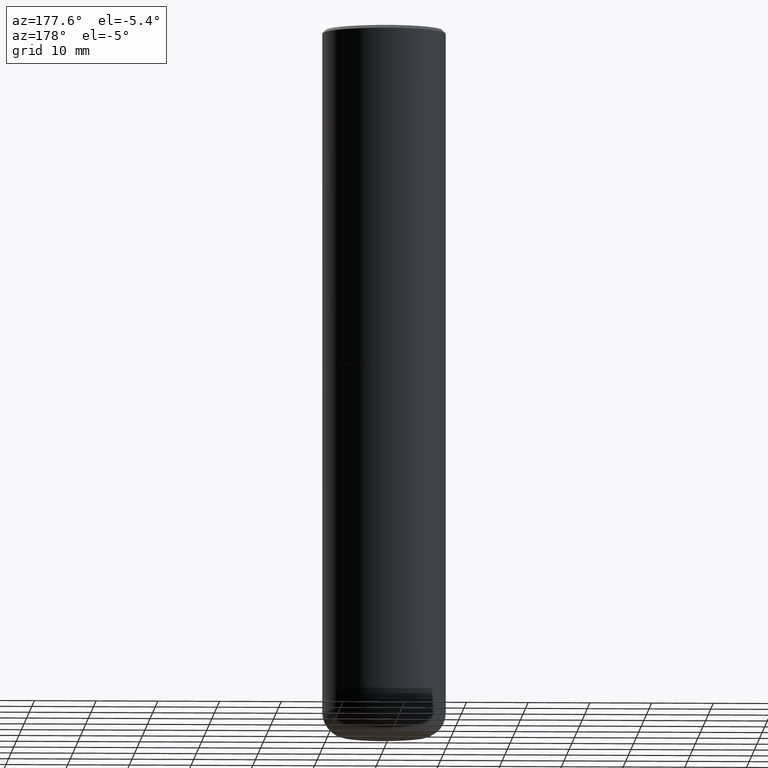
[diagram: clean part render]
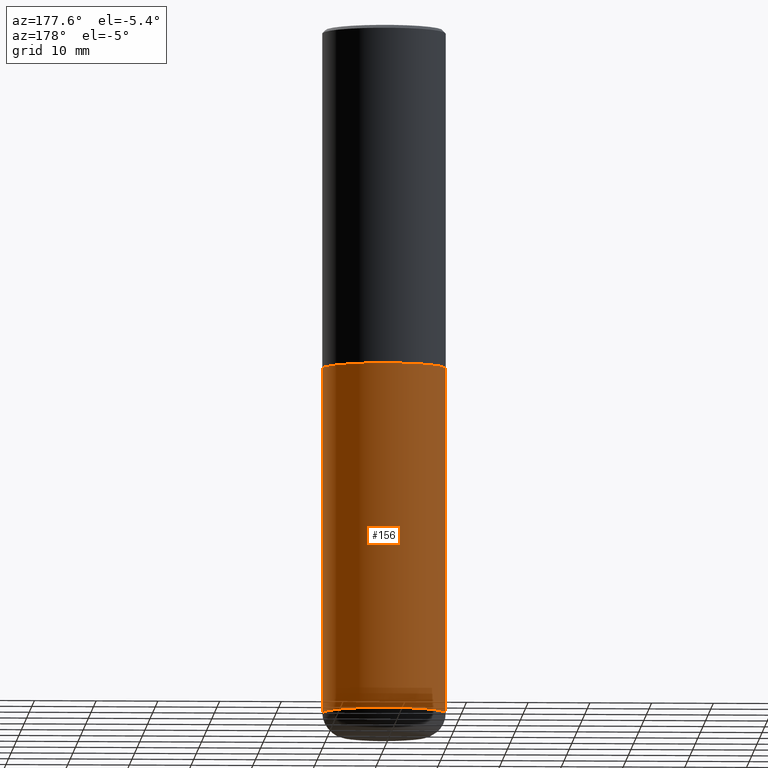
[diagram: same view with one face highlighted and labeled with its STEP entity id]
A machine part, auxiliary view. The second image highlights one B-rep face of the part: STEP entity #156.
In plain terms, the highlighted cylindrical surface (partial cylindrical patch) has radius 10 mm, axis along (-0, 0, 1).
Its self-contained STEP definition (entity closure, byte-faithful):
#12 = EDGE_CURVE ( 'NONE', #370, #275, #291, .T. ) ;
#14 = EDGE_CURVE ( 'NONE', #258, #402, #199, .T. ) ;
#23 = VECTOR ( 'NONE', #320, 39.37007874015748143 ) ;
#26 = LINE ( 'NONE', #150, #304 ) ;
#27 = CARTESIAN_POINT ( 'NONE',  ( 1.068694322990966450E-28, -1.525812259887842897E-14, -4.370099999999998985 ) ) ;
#38 = ORIENTED_EDGE ( 'NONE', *, *, #274, .T. ) ;
#42 = ORIENTED_EDGE ( 'NONE', *, *, #14, .T. ) ;
#46 = CARTESIAN_POINT ( 'NONE',  ( -0.3937000000000001054, -1.246071584819091497E-14, -4.370099999999998985 ) ) ;
#90 = DIRECTION ( 'NONE',  ( -2.445468806185136597E-29, 3.491481338843145583E-15, 1.000000000000000000 ) ) ;
#96 = AXIS2_PLACEMENT_3D ( 'NONE', #383, #218, #276 ) ;
#97 = ORIENTED_EDGE ( 'NONE', *, *, #12, .F. ) ;
#115 = DIRECTION ( 'NONE',  ( -2.445468806185136597E-29, 3.491481338843145583E-15, 1.000000000000000000 ) ) ;
#119 = DIRECTION ( 'NONE',  ( -2.445468806185136877E-29, 3.491481338843145188E-15, 1.000000000000000000 ) ) ;
#123 = DIRECTION ( 'NONE',  ( 1.000000000000000000, -6.982962677686262766E-15, 0.000000000000000000 ) ) ;
#126 = CARTESIAN_POINT ( 'NONE',  ( -0.3937000000000000499, -8.611881394317173410E-15, -2.165399999999999547 ) ) ;
#150 = CARTESIAN_POINT ( 'NONE',  ( 0.3937000000000000499, -2.749192406205083217E-15, 1.919750796630860172E-29 ) ) ;
#153 = CARTESIAN_POINT ( 'NONE',  ( -0.3937000000000000499, 2.797406750687514786E-15, -1.936584745033356735E-29 ) ) ;
#156 = ADVANCED_FACE ( 'NONE', ( #337 ), #266, .T. ) ;
#170 = EDGE_LOOP ( 'NONE', ( #42, #38, #97, #409 ) ) ;
#181 = AXIS2_PLACEMENT_3D ( 'NONE', #406, #115, #341 ) ;
#184 = CARTESIAN_POINT ( 'NONE',  ( 0.3937000000000000499, -1.030964609733602906E-14, -2.165399999999999547 ) ) ;
#191 = AXIS2_PLACEMENT_3D ( 'NONE', #27, #90, #123 ) ;
#199 = CIRCLE ( 'NONE', #191, 0.3937000000000000499 ) ;
#218 = DIRECTION ( 'NONE',  ( -2.445468806185136597E-29, 3.491481338843145583E-15, 1.000000000000000000 ) ) ;
#245 = EDGE_CURVE ( 'NONE', #258, #370, #26, .T. ) ;
#258 = VERTEX_POINT ( 'NONE', #387 ) ;
#266 = CYLINDRICAL_SURFACE ( 'NONE', #181, 0.3937000000000000499 ) ;
#274 = EDGE_CURVE ( 'NONE', #402, #275, #285, .T. ) ;
#275 = VERTEX_POINT ( 'NONE', #126 ) ;
#276 = DIRECTION ( 'NONE',  ( 1.000000000000000000, -6.982962677686265133E-15, 0.000000000000000000 ) ) ;
#285 = LINE ( 'NONE', #153, #23 ) ;
#291 = CIRCLE ( 'NONE', #96, 0.3937000000000000499 ) ;
#304 = VECTOR ( 'NONE', #119, 39.37007874015748143 ) ;
#320 = DIRECTION ( 'NONE',  ( -2.445468806185136877E-29, 3.491481338843145188E-15, 1.000000000000000000 ) ) ;
#337 = FACE_OUTER_BOUND ( 'NONE', #170, .T. ) ;
#341 = DIRECTION ( 'NONE',  ( 1.000000000000000000, -6.982962677686265922E-15, 4.876176775795935793E-29 ) ) ;
#370 = VERTEX_POINT ( 'NONE', #184 ) ;
#383 = CARTESIAN_POINT ( 'NONE',  ( 5.295418152913293224E-29, -7.560453691130945845E-15, -2.165399999999999547 ) ) ;
#387 = CARTESIAN_POINT ( 'NONE',  ( 0.3937000000000001054, -1.800731500508351219E-14, -4.370099999999998985 ) ) ;
#402 = VERTEX_POINT ( 'NONE', #46 ) ;
#406 = CARTESIAN_POINT ( 'NONE',  ( 0.000000000000000000, 0.000000000000000000, 0.000000000000000000 ) ) ;
#409 = ORIENTED_EDGE ( 'NONE', *, *, #245, .F. ) ;